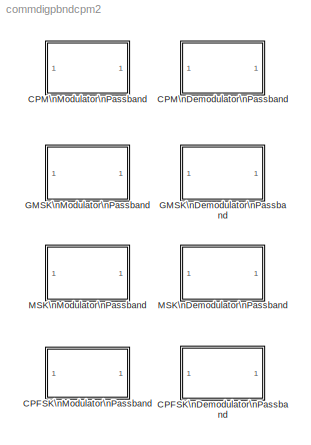
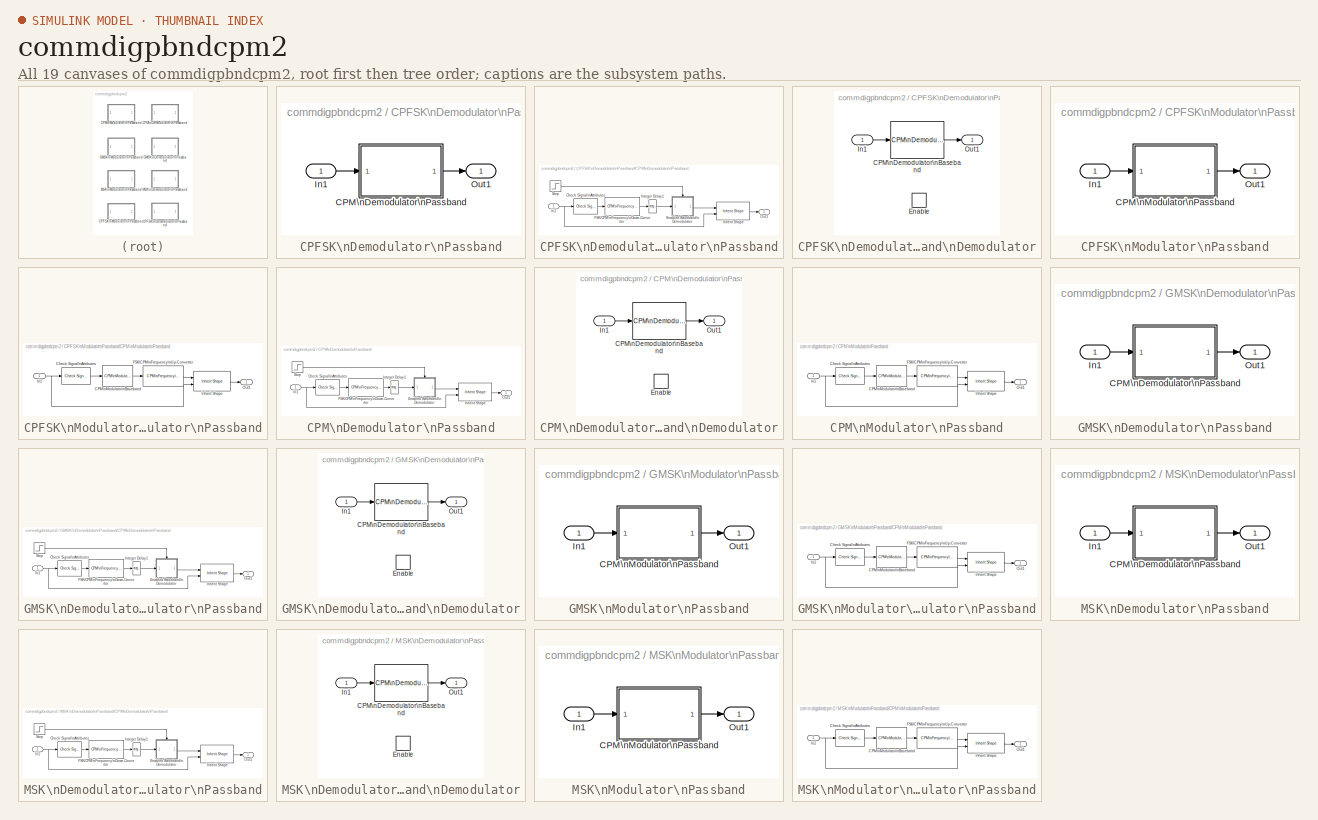
[diagram: thumbnail index - all 19 canvases of the model, root first then tree order]
MODEL commdigpbndcpm2
KIND library
BLOCK [SubSystem] CPFSK\nDemodulator\nPassband
  MaskCallbackString = |commblkpbndcpfskdemod(gcb,'cbOutputType');||||||||
  MaskDescription = Demodulate the CPFSK modulated input signal using the Viterbi algorithm. Traceback length is the number of trellis branches that the algorithm uses to construct each traceback path.\n\nThe input must be sample-based.\n\nThe symbol period divided by the baseband samples per symbol must be an integer multiple of the input sample time.
  MaskDisplay = plot(0,0,100,100,[5+1.5*[[0:.8:10] [10:1.6:20] [20:.8:30]] 50 50 50 50+15*[0 1 1 2 2 3]],[85+10*[sin([0:.8:10]*pi*2/5) sin([10:1.6:20]*pi/5) sin([20:.8:30]*pi*2/5)] 85 99 75 85+8*[1 1 -1 -1 1 1]]);\ntext(50,50,'CPFSK','horiz','center','verti','middle');
  MaskEnableString = on,on,off,on,on,on,on,on,on,on
  MaskHelp = helpview(commbhelp)
  MaskIconFrame = on
  MaskIconOpaque = on
  MaskIconRotate = none
  MaskIconUnits = autoscale
  MaskInitialization = [eStr,params]=commblkpbndcpfskdemod(gcb, 'init');\nif(eStr.ecode==1)\n    error(eStr.emsg);\nelseif(eStr.ecode==2)\n    warning(eStr.emsg);\nend;\n
  MaskPromptString = M-ary number:|Output type:|Symbol set ordering:|Modulation index:|Symbol period (s):|Baseband samples per symbol:|Carrier frequency (Hz):|Carrier initial phase (rad):|Input sample time (s):|Traceback length:
  MaskSelfModifiable = on
  MaskStyleString = edit,popup(Bit|Integer),popup(Binary|Gray),edit,edit,edit,edit,edit,edit,edit
  MaskToolTipString = on,on,on,on,on,on,on,on,on,on
  MaskTunableValueString = off,off,off,off,off,off,off,off,off,off
  MaskType = CPFSK Demodulator Passband
  MaskValueString = 4|Integer|Binary|.5|1/100|8|3000|0|1/8000|16
  MaskVarAliasString = ,,,,,,,,,
  MaskVariables = Mnum=@1;outputType=@2;mappingType=@3;modIdx=@4;td=@5;numSamp=@6;Fc=@7;Ph=@8;InSamp=@9;traceBack=@10;
  MaskVisibilityString = on,on,on,on,on,on,on,on,on,on
  Ports = [1, 1]
  RTWFcnNameOpts = Auto
  RTWFileNameOpts = Auto
  RTWSystemCode = Auto
  ShowPortLabels = on
  TreatAsAtomicUnit = off
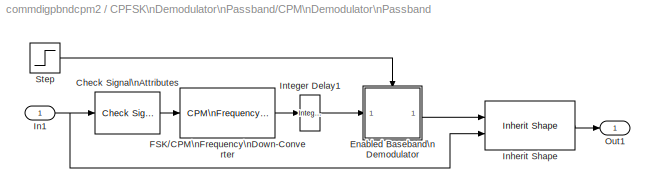
BLOCK [SubSystem] CPFSK\nDemodulator\nPassband/CPM\nDemodulator\nPassband
  AncestorBlock = commdigpbndcpm2/CPM\nDemodulator\nPassband
  ErrorFcn = commblkpbndcpmdemod
  MaskCallbackString = |commblkpbndcpmdemod(gcb,'cbOutputType');|||commblkpbndcpmdemod(gcb,'cbPulseShape');|||||||||||
  MaskDescription = Demodulate the CPM modulated input signal using the Viterbi algorithm. Traceback length is the number of trellis branches that the algorithm uses to construct each traceback path.\n\nThe input must be sample-based.  <repeated x3 — deduplicated; at blocks: CPM\nDemodulator\nPassband>
  MaskDisplay = plot(0,0,100,100,[5+1.5*[[0:.8:10] [10:1.6:20] [20:.8:30]] 50 50 50 50+15*[0 1 1 2 2 3]],[85+10*[sin([0:.8:10]*pi*2/5) sin([10:1.6:20]*pi/5) sin([20:.8:30]*pi*2/5)] 85 99 75 85+8*[1 1 -1 -1 1 1]]);\ntext(50,50,'CPM','horiz','center','verti','middle');  <repeated x4 — deduplicated; at blocks: CPM\nDemodulator\nPassband>
  MaskEnableString = on,on,off,on,on,on,on,on,on,on,on,on,on,on,on,on
  MaskHelp = helpview(commbhelp)
  MaskIconFrame = on
  MaskIconOpaque = on
  MaskIconRotate = none
  MaskIconUnits = autoscale
  MaskInitialization = [eStr,params]=commblkpbndcpmdemod(gcb, 'init');\nif(eStr.ecode==1)\n    error(eStr.emsg);\nelseif(eStr.ecode==2)\n    warning(eStr.emsg);\nend;\n
  MaskPromptString = M-ary number:|Output type:|Symbol set ordering:|Modulation index:|Frequency pulse shape:|BT product:|Main lobe pulse duration (symbol intervals):|Rolloff:|Pulse length (symbol intervals):|Symbol prehistory:|Symbol period (s):|Baseband samples per symbol:|Carrier frequency (Hz):|Carrier initial phase (rad):|Input sample time (s):|Traceback length:  <repeated x4 — deduplicated; at blocks: CPM\nDemodulator\nPassband>
  MaskSelfModifiable = on
  MaskStyleString = edit,popup(Bit|Integer),popup(Binary|Gray),edit,popup(Rectangular|Raised Cosine|Spectral Raised Cosine|Gaussian|Tamed FM),edit,edit,edit,edit,edit,edit,edit,edit,edit,edit,edit
  MaskToolTipString = on,on,on,on,on,on,on,on,on,on,on,on,on,on,on,on
  MaskTunableValueString = off,off,off,off,off,off,off,off,off,off,off,off,off,off,off,off
  MaskType = CPM Demodulator Passband
  MaskValueString = Mnum|Integer|Binary|modIdx|Rectangular|0.3|1|0.2|1|1|td|numSamp|Fc|Ph|InSamp|traceBack
  MaskVarAliasString = ,,,,,,,,,,,,,,,
  MaskVariables = Mnum=@1;outputType=@2;mappingType=@3;modIdx=@4;pulseShape=@5;BT=@6;mainLobePulseLength=@7;rollOff=@8;pulseLength=@9;preHistory=@10;td=@11;numSamp=@12;Fc=@13;Ph=@14;InSamp=@15;traceBack=@16;  <repeated x4 — deduplicated; at blocks: CPM\nDemodulator\nPassband>
  MaskVisibilityString = on,on,on,on,on,off,off,off,on,on,on,on,on,on,on,on
  Ports = [1, 1]
  RTWFcnNameOpts = Auto
  RTWFileNameOpts = Auto
  RTWSystemCode = Auto
  ShowPortLabels = on
  TreatAsAtomicUnit = off
BLOCK [Reference] CPFSK\nDemodulator\nPassband/CPM\nDemodulator\nPassband/Check Signal\nAttributes  REF=dspsigattribs/Check Signal\nAttributes
  Complexity = Ignore
  DatatypeCheckMethod = Ignore
  DatatypeGeneral = Boolean
  Dimensions = 1-D
  DimsCheckMethod = Ignore
  DtypeFixedSpecific = Any fixed-point
  DtypeFloatSpecific = Any floating-point
  DtypeIntSpecific = Any integer
  Frame = Frame-based
  Ports = [1, 1]
  SampleMode = Ignore
  SigAttribCheckMethod = Matches attributes exactly
  SourceBlock = dspsigattribs/Check Signal\nAttributes
  SourceType = Check Signal Attributes
BLOCK [SubSystem] CPFSK\nDemodulator\nPassband/CPM\nDemodulator\nPassband/Enabled Baseband\nDemodulator
  MaskIconFrame = on
  MaskIconOpaque = on
  MaskIconRotate = none
  MaskIconUnits = autoscale
  MaskSelfModifiable = on
  Ports = [1, 1, 1]
  RTWFcnNameOpts = Auto
  RTWFileNameOpts = Auto
  RTWSystemCode = Auto
  ShowPortLabels = on
  TreatAsAtomicUnit = on
BLOCK [Reference] CPFSK\nDemodulator\nPassband/CPM\nDemodulator\nPassband/Enabled Baseband\nDemodulator/CPM\nDemodulator\nBaseband  REF=commdigbbndcpm2/CPM\nDemodulator\nBaseband
  BT = BT
  Mnum = Mnum
  Ports = [1, 1]
  SourceBlock = commdigbbndcpm2/CPM\nDemodulator\nBaseband
  SourceType = CPM Demodulator Baseband
  mainLobePulseLength = 1
  mappingType = Binary
  modIdx = modIdx
  outputType = Integer
  phaseOffset = 0
  preHistory = preHistory
  pulseLength = pulseLength
  pulseShape = Rectangular
  rollOff = rollOff
  samplesPerSymbol = numSamp
  traceBack = traceBack
BLOCK [EnablePort] CPFSK\nDemodulator\nPassband/CPM\nDemodulator\nPassband/Enabled Baseband\nDemodulator/Enable
  Ports = []
  ShowOutputPort = off
  StatesWhenEnabling = held
BLOCK [Inport] CPFSK\nDemodulator\nPassband/CPM\nDemodulator\nPassband/Enabled Baseband\nDemodulator/In1
  Interpolate = on
  LatchInput = off
  Port = 1
BLOCK [Outport] CPFSK\nDemodulator\nPassband/CPM\nDemodulator\nPassband/Enabled Baseband\nDemodulator/Out1
  InitialOutput = []
  OutputWhenDisabled = held
  Port = 1
BLOCK [Reference] CPFSK\nDemodulator\nPassband/CPM\nDemodulator\nPassband/FSK//CPM\nFrequency\nDown-Converter  REF=commblksprivate/FSK//CPM\nFrequency\nDown-Converter
  AncestorBlock = commblksprivate/PAM//QAM//PSK\nFrequency\nDown-Converter
  Fc = Fc
  M = 8
  Ph = Ph
  Ports = [1, 1]
  SourceBlock = commblksprivate/FSK//CPM\nFrequency\nDown-Converter
  SourceType = FSK/CPM Frequency Down-Converter
  Tin = InSamp
  Tout = td / numSamp
  freqSep = 100
  modType = CPM
  td = td
BLOCK [Inport] CPFSK\nDemodulator\nPassband/CPM\nDemodulator\nPassband/In1
  Interpolate = on
  LatchInput = off
  Port = 1
BLOCK [Reference] CPFSK\nDemodulator\nPassband/CPM\nDemodulator\nPassband/Inherit Shape  REF=commblksprivate/Inherit Shape
  Ports = [2, 1]
  SourceBlock = commblksprivate/Inherit Shape
  SourceType = Inherit Shape
BLOCK [Reference] CPFSK\nDemodulator\nPassband/CPM\nDemodulator\nPassband/Integer Delay1  REF=dspsigops/Integer Delay
  Ports = [1, 1]
  SourceBlock = dspsigops/Integer Delay
  SourceType = Integer Delay
  delay = numSamp-1
  ic = 0
BLOCK [Outport] CPFSK\nDemodulator\nPassband/CPM\nDemodulator\nPassband/Out1
  InitialOutput = []
  OutputWhenDisabled = held
  Port = 1
BLOCK [Step] CPFSK\nDemodulator\nPassband/CPM\nDemodulator\nPassband/Step
  After = 1
  Before = 0
  SampleTime = td
  Time = td
  VectorParams1D = on
BLOCK [Inport] CPFSK\nDemodulator\nPassband/In1
  Interpolate = on
  LatchInput = off
  Port = 1
BLOCK [Outport] CPFSK\nDemodulator\nPassband/Out1
  InitialOutput = []
  OutputWhenDisabled = held
  Port = 1
BLOCK [SubSystem] CPFSK\nModulator\nPassband
  ErrorFcn = commblkpbndcpfskmod
  MaskCallbackString = |commblkpbndcpfskmod(gcb,'cbInputType');|||||||
  MaskDescription = Modulate the input signal using continuous phase FSK.\n\nThe input must be sample-based and contain either an integer or log2(M) bits. \n\nThe input sample time must equal the symbol period.  Also, the symbol period divided by the baseband samples per symbol must be an integer multiple of the output sample time.
  MaskDisplay = plot(0,0,100,100,[5+15*[0 1 1 2 2 3] 50 50 50 50+1.5*[[0:.8:10] [10:1.6:20] [20:.8:30]]],[85+8*[1 1 -1 -1 1 1] 85 99 75 85+10*[sin([0:.8:10]*pi*2/5) sin([10:1.6:20]*pi/5) sin([20:.8:30]*pi*2/5)]]);\ntext(50,50,'CPFSK','horiz','center','verti','middle');
  MaskEnableString = on,on,off,on,on,on,on,on,on
  MaskHelp = helpview(commbhelp)
  MaskIconFrame = on
  MaskIconOpaque = on
  MaskIconRotate = none
  MaskIconUnits = autoscale
  MaskInitialization = [eStr,params]=commblkpbndcpfskmod(gcb, 'init');\nif(eStr.ecode==1)\n    error(eStr.emsg);\nelseif(eStr.ecode==2)\n    warning(eStr.emsg);\nend;\n
  MaskPromptString = M-ary number:|Input type:|Symbol set ordering:|Modulation index:|Symbol period (s):|Baseband samples per symbol:|Carrier frequency (Hz):|Carrier initial phase (rad):|Output sample time (s):
  MaskSelfModifiable = on
  MaskStyleString = edit,popup(Bit|Integer),popup(Binary|Gray),edit,edit,edit,edit,edit,edit
  MaskToolTipString = on,on,on,on,on,on,on,on,on
  MaskTunableValueString = on,on,on,on,off,on,off,off,off
  MaskType = CPFSK Modulator Passband
  MaskValueString = 4|Integer|Binary|.5|1/100|8|3000|0|1/8000
  MaskVarAliasString = ,,,,,,,,
  MaskVariables = Mnum=@1;inputType=@2;mappingType=@3;modIdx=@4;td=@5;numSamp=@6;Fc=@7;Ph=@8;OutSamp=@9;
  MaskVisibilityString = on,on,on,on,on,on,on,on,on
  Ports = [1, 1]
  RTWFcnNameOpts = Auto
  RTWFileNameOpts = Auto
  RTWSystemCode = Auto
  ShowPortLabels = on
  TreatAsAtomicUnit = off
BLOCK [SubSystem] CPFSK\nModulator\nPassband/CPM\nModulator\nPassband
  AncestorBlock = commdigpbndcpm2/CPM\nModulator\nPassband
  ErrorFcn = commblkpbndcpmmod
  MaskCallbackString = |commblkpbndcpmmod(gcb,'cbInputType');|||commblkpbndcpmmod(gcb,'cbPulseShape');||||||||||
  MaskDescription = Output the complex envelope representation of the selected continuous phase modulation in response to the input data.\n\nThe input must be sample-based and contain either an integer or log2(M) bits. The input sample time must equal the symbol period.  <repeated x3 — deduplicated; at blocks: CPM\nModulator\nPassband>
  MaskDisplay = plot(0,0,100,100,[5+15*[0 1 1 2 2 3] 50 50 50 50+1.5*[[0:.8:10] [10:1.6:20] [20:.8:30]]],[85+8*[1 1 -1 -1 1 1] 85 99 75 85+10*[sin([0:.8:10]*pi*2/5) sin([10:1.6:20]*pi/5) sin([20:.8:30]*pi*2/5)]]);\ntext(50,50,'CPM','horiz','center','verti','middle');  <repeated x4 — deduplicated; at blocks: CPM\nModulator\nPassband>
  MaskEnableString = on,on,off,on,on,on,on,on,on,on,on,on,on,on,on
  MaskHelp = helpview(commbhelp)
  MaskIconFrame = on
  MaskIconOpaque = on
  MaskIconRotate = none
  MaskIconUnits = autoscale
  MaskInitialization = [eStr,params]=commblkpbndcpmmod(gcb, 'init');\nif(eStr.ecode==1)\n    error(eStr.emsg);\nelseif(eStr.ecode==2)\n    warning(eStr.emsg);\nend;\n\n
  MaskPromptString = M-ary number:|Input type:|Symbol set ordering:|Modulation index:|Frequency pulse shape:|BT product:|Main lobe pulse duration (symbol intervals):|Rolloff:|Pulse length (symbol intervals):|Symbol prehistory:|Symbol period (s):|Baseband samples per symbol:|Carrier frequency (Hz):|Carrier initial phase (rad):|Output sample time:  <repeated x3 — deduplicated; at blocks: CPM\nModulator\nPassband>
  MaskSelfModifiable = on
  MaskStyleString = edit,popup(Bit|Integer),popup(Binary|Gray),edit,popup(Rectangular|Raised Cosine|Spectral Raised Cosine|Gaussian|Tamed FM),edit,edit,edit,edit,edit,edit,edit,edit,edit,edit
  MaskToolTipString = on,on,on,on,on,on,on,on,on,on,on,on,on,on,on
  MaskTunableValueString = off,off,off,off,off,off,off,off,off,off,off,off,off,off,off
  MaskType = CPM Modulator Passband
  MaskValueString = Mnum|Integer|Binary|modIdx|Rectangular|0.3|1|0.2|1|1|td|numSamp|Fc|Ph|OutSamp
  MaskVarAliasString = ,,,,,,,,,,,,,,
  MaskVariables = Mnum=@1;inputType=@2;mappingType=@3;modIdx=@4;pulseShape=@5;BT=@6;mainLobePulseLength=@7;rollOff=@8;pulseLength=@9;preHistory=@10;td=@11;numSamp=@12;Fc=@13;Ph=@14;OutSamp=@15;
  MaskVisibilityString = on,on,on,on,on,off,off,off,on,on,on,on,on,on,on
  Ports = [1, 1]
  RTWFcnNameOpts = Auto
  RTWFileNameOpts = Auto
  RTWSystemCode = Auto
  ShowPortLabels = on
  TreatAsAtomicUnit = off
BLOCK [Reference] CPFSK\nModulator\nPassband/CPM\nModulator\nPassband/CPM\nModulator\nBaseband  REF=commdigbbndcpm2/CPM\nModulator\nBaseband
  BT = BT
  Mnum = Mnum
  Ports = [1, 1]
  SourceBlock = commdigbbndcpm2/CPM\nModulator\nBaseband
  SourceType = CPM Modulator Baseband
  inputType = Integer
  mainLobePulseLength = 1
  mappingType = Binary
  modIdx = modIdx
  phaseOffset = 0
  preHistory = preHistory
  pulseLength = pulseLength
  pulseShape = Rectangular
  rollOff = rollOff
  samplesPerSymbol = numSamp
BLOCK [Reference] CPFSK\nModulator\nPassband/CPM\nModulator\nPassband/Check Signal\nAttributes  REF=dspsigattribs/Check Signal\nAttributes
  Complexity = Ignore
  DatatypeCheckMethod = Ignore
  DatatypeGeneral = Boolean
  Dimensions = 1-D
  DimsCheckMethod = Ignore
  DtypeFixedSpecific = Any fixed-point
  DtypeFloatSpecific = Any floating-point
  DtypeIntSpecific = Any integer
  Frame = Frame-based
  Ports = [1, 1]
  SampleMode = Ignore
  SigAttribCheckMethod = Matches attributes exactly
  SourceBlock = dspsigattribs/Check Signal\nAttributes
  SourceType = Check Signal Attributes
BLOCK [Reference] CPFSK\nModulator\nPassband/CPM\nModulator\nPassband/FSK//CPM\nFrequency\nUp-Converter  REF=commdigpbndfm2/M-FSK\nModulator\nPassband/FSK//CPM\nFrequency\nUp-Converter
  AncestorBlock = commblksprivate/FSK//CPM\nFrequency\nUp-Converter
  Fc = Fc
  M = 8
  Ph = Ph
  Ports = [1, 1]
  SourceBlock = commdigpbndfm2/M-FSK\nModulator\nPassband/FSK//CPM\nFrequency\nUp-Converter
  SourceType = FSK/CPM Frequency Up-Converter
  Tin = td / numSamp
  Tout = OutSamp
  freqSep = 6
  modType = CPM
  td = td
BLOCK [Inport] CPFSK\nModulator\nPassband/CPM\nModulator\nPassband/In1
  Interpolate = on
  LatchInput = off
  Port = 1
BLOCK [Reference] CPFSK\nModulator\nPassband/CPM\nModulator\nPassband/Inherit Shape  REF=commblksprivate/Inherit Shape
  Ports = [2, 1]
  SourceBlock = commblksprivate/Inherit Shape
  SourceType = Inherit Shape
BLOCK [Outport] CPFSK\nModulator\nPassband/CPM\nModulator\nPassband/Out1
  InitialOutput = []
  OutputWhenDisabled = held
  Port = 1
BLOCK [Inport] CPFSK\nModulator\nPassband/In1
  Interpolate = on
  LatchInput = off
  Port = 1
BLOCK [Outport] CPFSK\nModulator\nPassband/Out1
  InitialOutput = []
  OutputWhenDisabled = held
  Port = 1
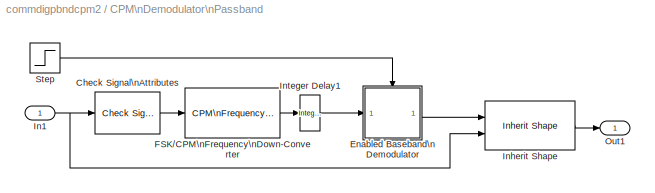
BLOCK [SubSystem] CPM\nDemodulator\nPassband
  ErrorFcn = commblkpbndcpmdemod
  MaskCallbackString = |commblkpbndcpmdemod(gcb,'cbOutputType');|||commblkpbndcpmdemod(gcb,'cbPulseShape');|||||||||||
  MaskDescription = Demodulate the CPM modulated input signal using the Viterbi algorithm. Traceback length is the number of trellis branches that the algorithm uses to construct each traceback path.\n\nThe input must be sample-based.\n\nThe symbol period divided by the baseband samples per symbol must be an integer multiple of the input sample time.
  MaskEnableString = on,on,off,on,on,on,on,on,on,on,on,on,on,on,on,on
  MaskHelp = helpview(commbhelp)
  MaskIconFrame = on
  MaskIconOpaque = on
  MaskIconRotate = none
  MaskIconUnits = autoscale
  MaskInitialization = [eStr,params]=commblkpbndcpmdemod(gcb, 'init');\nif(eStr.ecode==1)\n    error(eStr.emsg);\nelseif(eStr.ecode==2)\n    warning(eStr.emsg);\nend;\n
  MaskSelfModifiable = on
  MaskStyleString = edit,popup(Bit|Integer),popup(Binary|Gray),edit,popup(Rectangular|Raised Cosine|Spectral Raised Cosine|Gaussian|Tamed FM),edit,edit,edit,edit,edit,edit,edit,edit,edit,edit,edit
  MaskToolTipString = on,on,on,on,on,on,on,on,on,on,on,on,on,on,on,on
  MaskTunableValueString = off,off,off,off,off,off,off,off,off,off,off,off,off,off,off,off
  MaskType = CPM Demodulator Passband
  MaskValueString = 2|Integer|Binary|0.5|Rectangular|0.3|1|0.2|1|1|1/100|8|3000|0|1/8000|16
  MaskVarAliasString = ,,,,,,,,,,,,,,,
  MaskVisibilityString = on,on,on,on,on,off,off,off,on,on,on,on,on,on,on,on
  Ports = [1, 1]
  RTWFcnNameOpts = Auto
  RTWFileNameOpts = Auto
  RTWSystemCode = Auto
  ShowPortLabels = on
  TreatAsAtomicUnit = off
BLOCK [Reference] CPM\nDemodulator\nPassband/Check Signal\nAttributes  REF=dspsigattribs/Check Signal\nAttributes
  Complexity = Ignore
  DatatypeCheckMethod = Ignore
  DatatypeGeneral = Boolean
  Dimensions = 1-D
  DimsCheckMethod = Ignore
  DtypeFixedSpecific = Any fixed-point
  DtypeFloatSpecific = Any floating-point
  DtypeIntSpecific = Any integer
  Frame = Frame-based
  Ports = [1, 1]
  SampleMode = Ignore
  SigAttribCheckMethod = Matches attributes exactly
  SourceBlock = dspsigattribs/Check Signal\nAttributes
  SourceType = Check Signal Attributes
BLOCK [SubSystem] CPM\nDemodulator\nPassband/Enabled Baseband\nDemodulator
  MaskIconFrame = on
  MaskIconOpaque = on
  MaskIconRotate = none
  MaskIconUnits = autoscale
  MaskSelfModifiable = on
  Ports = [1, 1, 1]
  RTWFcnNameOpts = Auto
  RTWFileNameOpts = Auto
  RTWSystemCode = Auto
  ShowPortLabels = on
  TreatAsAtomicUnit = on
BLOCK [Reference] CPM\nDemodulator\nPassband/Enabled Baseband\nDemodulator/CPM\nDemodulator\nBaseband  REF=commdigbbndcpm2/CPM\nDemodulator\nBaseband
  BT = BT
  Mnum = Mnum
  Ports = [1, 1]
  SourceBlock = commdigbbndcpm2/CPM\nDemodulator\nBaseband
  SourceType = CPM Demodulator Baseband
  mainLobePulseLength = 1
  mappingType = Binary
  modIdx = modIdx
  outputType = Integer
  phaseOffset = 0
  preHistory = preHistory
  pulseLength = pulseLength
  pulseShape = Rectangular
  rollOff = rollOff
  samplesPerSymbol = numSamp
  traceBack = traceBack
BLOCK [EnablePort] CPM\nDemodulator\nPassband/Enabled Baseband\nDemodulator/Enable
  Ports = []
  ShowOutputPort = off
  StatesWhenEnabling = held
BLOCK [Inport] CPM\nDemodulator\nPassband/Enabled Baseband\nDemodulator/In1
  Interpolate = on
  LatchInput = off
  Port = 1
BLOCK [Outport] CPM\nDemodulator\nPassband/Enabled Baseband\nDemodulator/Out1
  InitialOutput = []
  OutputWhenDisabled = held
  Port = 1
BLOCK [Reference] CPM\nDemodulator\nPassband/FSK//CPM\nFrequency\nDown-Converter  REF=commblksprivate/FSK//CPM\nFrequency\nDown-Converter
  Fc = Fc
  M = 8
  Ph = Ph
  Ports = [1, 1]
  SourceBlock = commblksprivate/FSK//CPM\nFrequency\nDown-Converter
  SourceType = FSK/CPM Frequency Down-Converter
  Tin = InSamp
  Tout = td / numSamp
  freqSep = 100
  modType = CPM
  td = td
BLOCK [Inport] CPM\nDemodulator\nPassband/In1
  Interpolate = on
  LatchInput = off
  Port = 1
BLOCK [Reference] CPM\nDemodulator\nPassband/Inherit Shape  REF=commblksprivate/Inherit Shape
  Ports = [2, 1]
  SourceBlock = commblksprivate/Inherit Shape
  SourceType = Inherit Shape
BLOCK [Reference] CPM\nDemodulator\nPassband/Integer Delay1  REF=dspsigops/Integer Delay
  Ports = [1, 1]
  SourceBlock = dspsigops/Integer Delay
  SourceType = Integer Delay
  delay = numSamp-1
  ic = 0
BLOCK [Outport] CPM\nDemodulator\nPassband/Out1
  InitialOutput = []
  OutputWhenDisabled = held
  Port = 1
BLOCK [Step] CPM\nDemodulator\nPassband/Step
  After = 1
  Before = 0
  SampleTime = td
  Time = td
  VectorParams1D = on
BLOCK [SubSystem] CPM\nModulator\nPassband
  ErrorFcn = commblkpbndcpmmod
  MaskCallbackString = |commblkpbndcpmmod(gcb,'cbInputType');|||commblkpbndcpmmod(gcb,'cbPulseShape');||||||||||
  MaskDescription = Output the complex envelope representation of the selected continuous phase modulation in response to the input data.\n\nThe input must be sample-based and contain either an integer or log2(M) bits. \n\nThe input sample time must equal the symbol period.  Also, the symbol period divided by the baseband samples per symbol must be an integer multiple of the output sample time.
  MaskEnableString = on,on,off,on,on,on,on,on,on,on,on,on,on,on,on
  MaskHelp = helpview(commbhelp)
  MaskIconFrame = on
  MaskIconOpaque = on
  MaskIconRotate = none
  MaskIconUnits = autoscale
  MaskInitialization = [eStr,params]=commblkpbndcpmmod(gcb, 'init');\nif(eStr.ecode==1)\n    error(eStr.emsg);\nelseif(eStr.ecode==2)\n    warning(eStr.emsg);\nend;\n\n
  MaskPromptString = M-ary number:|Input type:|Symbol set ordering:|Modulation index:|Frequency pulse shape:|BT product:|Main lobe pulse duration (symbol intervals):|Rolloff:|Pulse length (symbol intervals):|Symbol prehistory:|Symbol period (s):|Baseband samples per symbol:|Carrier frequency (Hz):|Carrier initial phase (rad):|Output sample time (s):
  MaskSelfModifiable = on
  MaskStyleString = edit,popup(Bit|Integer),popup(Binary|Gray),edit,popup(Rectangular|Raised Cosine|Spectral Raised Cosine|Gaussian|Tamed FM),edit,edit,edit,edit,edit,edit,edit,edit,edit,edit
  MaskToolTipString = on,on,on,on,on,on,on,on,on,on,on,on,on,on,on
  MaskTunableValueString = off,off,off,off,off,off,off,off,off,off,off,off,off,off,off
  MaskType = CPM Modulator Passband
  MaskValueString = 2|Integer|Binary|0.5|Rectangular|0.3|1|0.2|1|1|1/100|8|3000|0|1/8000
  MaskVarAliasString = ,,,,,,,,,,,,,,
  MaskVariables = Mnum=@1;inputType=@2;mappingType=@3;modIdx=@4;pulseShape=@5;BT=@6;mainLobePulseLength=@7;rollOff=@8;pulseLength=@9;preHistory=@10;td=@11;numSamp=@12;Fc=@13;Ph=@14;OutSamp=@15;
  MaskVisibilityString = on,on,on,on,on,off,off,off,on,on,on,on,on,on,on
  Ports = [1, 1]
  RTWFcnNameOpts = Auto
  RTWFileNameOpts = Auto
  RTWSystemCode = Auto
  ShowPortLabels = on
  TreatAsAtomicUnit = off
BLOCK [Reference] CPM\nModulator\nPassband/CPM\nModulator\nBaseband  REF=commdigbbndcpm2/CPM\nModulator\nBaseband
  BT = BT
  Mnum = Mnum
  Ports = [1, 1]
  SourceBlock = commdigbbndcpm2/CPM\nModulator\nBaseband
  SourceType = CPM Modulator Baseband
  inputType = Integer
  mainLobePulseLength = 1
  mappingType = Binary
  modIdx = modIdx
  phaseOffset = 0
  preHistory = preHistory
  pulseLength = pulseLength
  pulseShape = Rectangular
  rollOff = rollOff
  samplesPerSymbol = numSamp
BLOCK [Reference] CPM\nModulator\nPassband/Check Signal\nAttributes  REF=dspsigattribs/Check Signal\nAttributes
  Complexity = Ignore
  DatatypeCheckMethod = Ignore
  DatatypeGeneral = Boolean
  Dimensions = 1-D
  DimsCheckMethod = Ignore
  DtypeFixedSpecific = Any fixed-point
  DtypeFloatSpecific = Any floating-point
  DtypeIntSpecific = Any integer
  Frame = Frame-based
  Ports = [1, 1]
  SampleMode = Ignore
  SigAttribCheckMethod = Matches attributes exactly
  SourceBlock = dspsigattribs/Check Signal\nAttributes
  SourceType = Check Signal Attributes
BLOCK [Reference] CPM\nModulator\nPassband/FSK//CPM\nFrequency\nUp-Converter  REF=commblksprivate/FSK//CPM\nFrequency\nUp-Converter
  Fc = Fc
  M = 8
  Ph = Ph
  Ports = [1, 1]
  SourceBlock = commblksprivate/FSK//CPM\nFrequency\nUp-Converter
  SourceType = FSK/CPM Frequency Up-Converter
  Tin = td / numSamp
  Tout = OutSamp
  freqSep = 6
  modType = CPM
  td = td
BLOCK [Inport] CPM\nModulator\nPassband/In1
  Interpolate = on
  LatchInput = off
  Port = 1
BLOCK [Reference] CPM\nModulator\nPassband/Inherit Shape  REF=commblksprivate/Inherit Shape
  Ports = [2, 1]
  SourceBlock = commblksprivate/Inherit Shape
  SourceType = Inherit Shape
BLOCK [Outport] CPM\nModulator\nPassband/Out1
  InitialOutput = []
  OutputWhenDisabled = held
  Port = 1
BLOCK [SubSystem] GMSK\nDemodulator\nPassband
  MaskCallbackString = |||||||||
  MaskDescription = Demodulate the GMSK modulated input signal using the Viterbi algorithm. Traceback length is the number of trellis branches that the algorithm uses to construct each traceback path.\n\nThe input must be sample-based.\n\nThe symbol period divided by the baseband samples per symbol must be an integer multiple of the input sample time.
  MaskDisplay = plot(0,0,100,100,[5+1.5*[[0:.8:10] [10:1.6:20] [20:.8:30]] 50 50 50 50+15*[0 1 1 2 2 3]],[85+10*[sin([0:.8:10]*pi*2/5) sin([10:1.6:20]*pi/5) sin([20:.8:30]*pi*2/5)] 85 99 75 85+8*[1 1 -1 -1 1 1]]);\ntext(50,50,'GMSK','horiz','center','verti','middle');
  MaskEnableString = on,on,on,on,on,on,on,on,on,on
  MaskHelp = helpview(commbhelp)
  MaskIconFrame = on
  MaskIconOpaque = on
  MaskIconRotate = none
  MaskIconUnits = autoscale
  MaskInitialization = [eStr,params]=commblkpbndgmskdemod(gcb, 'init');\nif(eStr.ecode==1)\n    error(eStr.emsg);\nelseif(eStr.ecode==2)\n    warning(eStr.emsg);\nend;\n
  MaskPromptString = Output type:|BT product:|Pulse length (symbol intervals):|Symbol prehistory:|Symbol period (s):|Baseband samples per symbol:|Carrier frequency (Hz):|Carrier initial phase (rad):|Input sample time (s):|Traceback length:
  MaskSelfModifiable = on
  MaskStyleString = popup(Bit|Integer),edit,edit,edit,edit,edit,edit,edit,edit,edit
  MaskToolTipString = on,on,on,on,on,on,on,on,on,on
  MaskTunableValueString = off,off,off,off,off,off,off,off,off,off
  MaskType = GMSK Demodulator Passband
  MaskValueString = Integer|.3|4|1|1/100|8|3000|0|1/8000|16
  MaskVarAliasString = ,,,,,,,,,
  MaskVariables = outputType=@1;BT=@2;pulseLength=@3;preHistory=@4;td=@5;numSamp=@6;Fc=@7;Ph=@8;InSamp=@9;traceBack=@10;
  MaskVisibilityString = on,on,on,on,on,on,on,on,on,on
  Ports = [1, 1]
  RTWFcnNameOpts = Auto
  RTWFileNameOpts = Auto
  RTWSystemCode = Auto
  ShowPortLabels = on
  TreatAsAtomicUnit = off
BLOCK [SubSystem] GMSK\nDemodulator\nPassband/CPM\nDemodulator\nPassband
  AncestorBlock = commdigpbndcpm2/CPM\nDemodulator\nPassband
  ErrorFcn = commblkpbndcpmdemod
  MaskCallbackString = |commblkpbndcpmdemod(gcb,'cbOutputType');|||commblkpbndcpmdemod(gcb,'cbPulseShape');|||||||||||
  MaskEnableString = on,on,off,on,on,on,on,on,on,on,on,on,on,on,on,on
  MaskHelp = helpview(commbhelp)
  MaskIconFrame = on
  MaskIconOpaque = on
  MaskIconRotate = none
  MaskIconUnits = autoscale
  MaskInitialization = [eStr,params]=commblkpbndcpmdemod(gcb, 'init');\nif(eStr.ecode==1)\n    error(eStr.emsg);\nelseif(eStr.ecode==2)\n    warning(eStr.emsg);\nend;\n
  MaskSelfModifiable = on
  MaskStyleString = edit,popup(Bit|Integer),popup(Binary|Gray),edit,popup(Rectangular|Raised Cosine|Spectral Raised Cosine|Gaussian|Tamed FM),edit,edit,edit,edit,edit,edit,edit,edit,edit,edit,edit
  MaskToolTipString = on,on,on,on,on,on,on,on,on,on,on,on,on,on,on,on
  MaskTunableValueString = off,off,off,off,off,off,off,off,off,off,off,off,off,off,off,off
  MaskType = CPM Demodulator Passband
  MaskValueString = 2|Integer|Binary|0.5|Gaussian|BT|1|0.2|pulseLength|preHistory|td|numSamp|Fc|Ph|InSamp|traceBack
  MaskVarAliasString = ,,,,,,,,,,,,,,,
  MaskVisibilityString = on,on,on,on,on,off,off,off,on,on,on,on,on,on,on,on
  Ports = [1, 1]
  RTWFcnNameOpts = Auto
  RTWFileNameOpts = Auto
  RTWSystemCode = Auto
  ShowPortLabels = on
  TreatAsAtomicUnit = off
BLOCK [Reference] GMSK\nDemodulator\nPassband/CPM\nDemodulator\nPassband/Check Signal\nAttributes  REF=dspsigattribs/Check Signal\nAttributes
  Complexity = Ignore
  DatatypeCheckMethod = Ignore
  DatatypeGeneral = Boolean
  Dimensions = 1-D
  DimsCheckMethod = Ignore
  DtypeFixedSpecific = Any fixed-point
  DtypeFloatSpecific = Any floating-point
  DtypeIntSpecific = Any integer
  Frame = Frame-based
  Ports = [1, 1]
  SampleMode = Ignore
  SigAttribCheckMethod = Matches attributes exactly
  SourceBlock = dspsigattribs/Check Signal\nAttributes
  SourceType = Check Signal Attributes
BLOCK [SubSystem] GMSK\nDemodulator\nPassband/CPM\nDemodulator\nPassband/Enabled Baseband\nDemodulator
  MaskIconFrame = on
  MaskIconOpaque = on
  MaskIconRotate = none
  MaskIconUnits = autoscale
  MaskSelfModifiable = on
  Ports = [1, 1, 1]
  RTWFcnNameOpts = Auto
  RTWFileNameOpts = Auto
  RTWSystemCode = Auto
  ShowPortLabels = on
  TreatAsAtomicUnit = on
BLOCK [Reference] GMSK\nDemodulator\nPassband/CPM\nDemodulator\nPassband/Enabled Baseband\nDemodulator/CPM\nDemodulator\nBaseband  REF=commdigbbndcpm2/CPM\nDemodulator\nBaseband
  BT = BT
  Mnum = Mnum
  Ports = [1, 1]
  SourceBlock = commdigbbndcpm2/CPM\nDemodulator\nBaseband
  SourceType = CPM Demodulator Baseband
  mainLobePulseLength = 1
  mappingType = Binary
  modIdx = modIdx
  outputType = Integer
  phaseOffset = 0
  preHistory = preHistory
  pulseLength = pulseLength
  pulseShape = Gaussian
  rollOff = rollOff
  samplesPerSymbol = numSamp
  traceBack = traceBack
BLOCK [EnablePort] GMSK\nDemodulator\nPassband/CPM\nDemodulator\nPassband/Enabled Baseband\nDemodulator/Enable
  Ports = []
  ShowOutputPort = off
  StatesWhenEnabling = held
BLOCK [Inport] GMSK\nDemodulator\nPassband/CPM\nDemodulator\nPassband/Enabled Baseband\nDemodulator/In1
  Interpolate = on
  LatchInput = off
  Port = 1
BLOCK [Outport] GMSK\nDemodulator\nPassband/CPM\nDemodulator\nPassband/Enabled Baseband\nDemodulator/Out1
  InitialOutput = []
  OutputWhenDisabled = held
  Port = 1
BLOCK [Reference] GMSK\nDemodulator\nPassband/CPM\nDemodulator\nPassband/FSK//CPM\nFrequency\nDown-Converter  REF=commblksprivate/FSK//CPM\nFrequency\nDown-Converter
  AncestorBlock = commblksprivate/PAM//QAM//PSK\nFrequency\nDown-Converter
  Fc = Fc
  M = 8
  Ph = Ph
  Ports = [1, 1]
  SourceBlock = commblksprivate/FSK//CPM\nFrequency\nDown-Converter
  SourceType = FSK/CPM Frequency Down-Converter
  Tin = InSamp
  Tout = td / numSamp
  freqSep = 100
  modType = CPM
  td = td
BLOCK [Inport] GMSK\nDemodulator\nPassband/CPM\nDemodulator\nPassband/In1
  Interpolate = on
  LatchInput = off
  Port = 1
BLOCK [Reference] GMSK\nDemodulator\nPassband/CPM\nDemodulator\nPassband/Inherit Shape  REF=commblksprivate/Inherit Shape
  Ports = [2, 1]
  SourceBlock = commblksprivate/Inherit Shape
  SourceType = Inherit Shape
BLOCK [Reference] GMSK\nDemodulator\nPassband/CPM\nDemodulator\nPassband/Integer Delay1  REF=dspsigops/Integer Delay
  Ports = [1, 1]
  SourceBlock = dspsigops/Integer Delay
  SourceType = Integer Delay
  delay = numSamp-1
  ic = 0
BLOCK [Outport] GMSK\nDemodulator\nPassband/CPM\nDemodulator\nPassband/Out1
  InitialOutput = []
  OutputWhenDisabled = held
  Port = 1
BLOCK [Step] GMSK\nDemodulator\nPassband/CPM\nDemodulator\nPassband/Step
  After = 1
  Before = 0
  SampleTime = td
  Time = td
  VectorParams1D = on
BLOCK [Inport] GMSK\nDemodulator\nPassband/In1
  Interpolate = on
  LatchInput = off
  Port = 1
BLOCK [Outport] GMSK\nDemodulator\nPassband/Out1
  InitialOutput = []
  OutputWhenDisabled = held
  Port = 1
BLOCK [SubSystem] GMSK\nModulator\nPassband
  ErrorFcn = commblkpbndgmskmod
  MaskCallbackString = ||||||||
  MaskDescription = Modulate the input signal using GMSK.\n\nThe input must be sample-based and contain either an integer or log2(M) bits. \n\nThe input sample time must equal the symbol period.  Also, the symbol period divided by the baseband samples per symbol must be an integer multiple of the output sample time.
  MaskDisplay = plot(0,0,100,100,[5+15*[0 1 1 2 2 3] 50 50 50 50+1.5*[[0:.8:10] [10:1.6:20] [20:.8:30]]],[85+8*[1 1 -1 -1 1 1] 85 99 75 85+10*[sin([0:.8:10]*pi*2/5) sin([10:1.6:20]*pi/5) sin([20:.8:30]*pi*2/5)]]);\ntext(50,50,'GMSK','horiz','center','verti','middle');
  MaskEnableString = on,on,on,on,on,on,on,on,on
  MaskHelp = helpview(commbhelp)
  MaskIconFrame = on
  MaskIconOpaque = on
  MaskIconRotate = none
  MaskIconUnits = autoscale
  MaskInitialization = [eStr,params]=commblkpbndgmskmod(gcb, 'init');\nif(eStr.ecode==1)\n    error(eStr.emsg);\nelseif(eStr.ecode==2)\n    warning(eStr.emsg);\nend;\n
  MaskPromptString = Input type:|BT product:|Pulse length (symbol intervals):|Symbol prehistory:|Symbol period (s):|Baseband samples per symbol:|Carrier frequency (Hz):|Carrier initial phase (rad):|Output sample time (s):
  MaskSelfModifiable = on
  MaskStyleString = popup(Bit|Integer),edit,edit,edit,edit,edit,edit,edit,edit
  MaskToolTipString = on,on,on,on,on,on,on,on,on
  MaskTunableValueString = on,on,on,on,off,on,off,off,off
  MaskType = GMSK Modulator Passband
  MaskValueString = Integer|.3|4|1|1/100|8|3000|0|1/8000
  MaskVarAliasString = ,,,,,,,,
  MaskVariables = inputType=@1;BT=@2;pulseLength=@3;preHistory=@4;td=@5;numSamp=@6;Fc=@7;Ph=@8;OutSamp=@9;
  MaskVisibilityString = on,on,on,on,on,on,on,on,on
  Ports = [1, 1]
  RTWFcnNameOpts = Auto
  RTWFileNameOpts = Auto
  RTWSystemCode = Auto
  ShowPortLabels = on
  TreatAsAtomicUnit = off
BLOCK [SubSystem] GMSK\nModulator\nPassband/CPM\nModulator\nPassband
  AncestorBlock = commdigpbndcpm2/CPM\nModulator\nPassband
  ErrorFcn = commblkpbndcpmmod
  MaskCallbackString = |commblkpbndcpmmod(gcb,'cbInputType');|||commblkpbndcpmmod(gcb,'cbPulseShape');||||||||||
  MaskEnableString = on,on,off,on,on,on,on,on,on,on,on,on,on,on,on
  MaskHelp = helpview(commbhelp)
  MaskIconFrame = on
  MaskIconOpaque = on
  MaskIconRotate = none
  MaskIconUnits = autoscale
  MaskInitialization = [eStr,params]=commblkpbndcpmmod(gcb, 'init');\nif(eStr.ecode==1)\n    error(eStr.emsg);\nelseif(eStr.ecode==2)\n    warning(eStr.emsg);\nend;\n\n
  MaskSelfModifiable = on
  MaskStyleString = edit,popup(Bit|Integer),popup(Binary|Gray),edit,popup(Rectangular|Raised Cosine|Spectral Raised Cosine|Gaussian|Tamed FM),edit,edit,edit,edit,edit,edit,edit,edit,edit,edit
  MaskToolTipString = on,on,on,on,on,on,on,on,on,on,on,on,on,on,on
  MaskTunableValueString = off,off,off,off,off,off,off,off,off,off,off,off,off,off,off
  MaskType = CPM Modulator Passband
  MaskValueString = 2|Integer|Binary|.5|Gaussian|BT|1|0.2|pulseLength|preHistory|td|numSamp|Fc|Ph|OutSamp
  MaskVarAliasString = ,,,,,,,,,,,,,,
  MaskVariables = Mnum=@1;inputType=@2;mappingType=@3;modIdx=@4;pulseShape=@5;BT=@6;mainLobePulseLength=@7;rollOff=@8;pulseLength=@9;preHistory=@10;td=@11;numSamp=@12;Fc=@13;Ph=@14;OutSamp=@15;
  MaskVisibilityString = on,on,on,on,on,on,off,off,on,on,on,on,on,on,on
  Ports = [1, 1]
  RTWFcnNameOpts = Auto
  RTWFileNameOpts = Auto
  RTWSystemCode = Auto
  ShowPortLabels = on
  TreatAsAtomicUnit = off
BLOCK [Reference] GMSK\nModulator\nPassband/CPM\nModulator\nPassband/CPM\nModulator\nBaseband  REF=commdigbbndcpm2/CPM\nModulator\nBaseband
  BT = BT
  Mnum = Mnum
  Ports = [1, 1]
  SourceBlock = commdigbbndcpm2/CPM\nModulator\nBaseband
  SourceType = CPM Modulator Baseband
  inputType = Integer
  mainLobePulseLength = 1
  mappingType = Binary
  modIdx = modIdx
  phaseOffset = 0
  preHistory = preHistory
  pulseLength = pulseLength
  pulseShape = Gaussian
  rollOff = rollOff
  samplesPerSymbol = numSamp
BLOCK [Reference] GMSK\nModulator\nPassband/CPM\nModulator\nPassband/Check Signal\nAttributes  REF=dspsigattribs/Check Signal\nAttributes
  Complexity = Ignore
  DatatypeCheckMethod = Ignore
  DatatypeGeneral = Boolean
  Dimensions = 1-D
  DimsCheckMethod = Ignore
  DtypeFixedSpecific = Any fixed-point
  DtypeFloatSpecific = Any floating-point
  DtypeIntSpecific = Any integer
  Frame = Frame-based
  Ports = [1, 1]
  SampleMode = Ignore
  SigAttribCheckMethod = Matches attributes exactly
  SourceBlock = dspsigattribs/Check Signal\nAttributes
  SourceType = Check Signal Attributes
BLOCK [Reference] GMSK\nModulator\nPassband/CPM\nModulator\nPassband/FSK//CPM\nFrequency\nUp-Converter  REF=commdigpbndfm2/M-FSK\nModulator\nPassband/FSK//CPM\nFrequency\nUp-Converter
  AncestorBlock = commblksprivate/FSK//CPM\nFrequency\nUp-Converter
  Fc = Fc
  M = 8
  Ph = Ph
  Ports = [1, 1]
  SourceBlock = commdigpbndfm2/M-FSK\nModulator\nPassband/FSK//CPM\nFrequency\nUp-Converter
  SourceType = FSK/CPM Frequency Up-Converter
  Tin = td / numSamp
  Tout = OutSamp
  freqSep = 6
  modType = CPM
  td = td
BLOCK [Inport] GMSK\nModulator\nPassband/CPM\nModulator\nPassband/In1
  Interpolate = on
  LatchInput = off
  Port = 1
BLOCK [Reference] GMSK\nModulator\nPassband/CPM\nModulator\nPassband/Inherit Shape  REF=commblksprivate/Inherit Shape
  Ports = [2, 1]
  SourceBlock = commblksprivate/Inherit Shape
  SourceType = Inherit Shape
BLOCK [Outport] GMSK\nModulator\nPassband/CPM\nModulator\nPassband/Out1
  InitialOutput = []
  OutputWhenDisabled = held
  Port = 1
BLOCK [Inport] GMSK\nModulator\nPassband/In1
  Interpolate = on
  LatchInput = off
  Port = 1
BLOCK [Outport] GMSK\nModulator\nPassband/Out1
  InitialOutput = []
  OutputWhenDisabled = held
  Port = 1
BLOCK [SubSystem] MSK\nDemodulator\nPassband
  MaskCallbackString = ||||||
  MaskDescription = Demodulate the MSK modulated input signal using the Viterbi algorithm. Traceback length is the number of trellis branches that the algorithm uses to construct each traceback path.\n\nThe input must be sample-based.\n\nThe symbol period divided by the baseband samples per symbol must be an integer multiple of the input sample time.
  MaskDisplay = plot(0,0,100,100,[5+1.5*[[0:.8:10] [10:1.6:20] [20:.8:30]] 50 50 50 50+15*[0 1 1 2 2 3]],[85+10*[sin([0:.8:10]*pi*2/5) sin([10:1.6:20]*pi/5) sin([20:.8:30]*pi*2/5)] 85 99 75 85+8*[1 1 -1 -1 1 1]]);\ntext(51,51,'MSK','horiz','center','verti','middle');\n
  MaskEnableString = on,on,on,on,on,on,on
  MaskHelp = helpview(commbhelp)
  MaskIconFrame = on
  MaskIconOpaque = on
  MaskIconRotate = none
  MaskIconUnits = autoscale
  MaskInitialization = [eStr,params]=commblkpbndmskdemod(gcb, 'init');\nif(eStr.ecode==1)\n    error(eStr.emsg);\nelseif(eStr.ecode==2)\n    warning(eStr.emsg);\nend;\n
  MaskPromptString = Output type:|Symbol period (s):|Baseband samples per symbol:|Carrier frequency (Hz):|Carrier initial phase (rad):|Input sample time (s):|Traceback length:
  MaskSelfModifiable = on
  MaskStyleString = popup(Bit|Integer),edit,edit,edit,edit,edit,edit
  MaskToolTipString = on,on,on,on,on,on,on
  MaskTunableValueString = off,off,off,off,off,off,off
  MaskType = MSK Demodulator Passband
  MaskValueString = Integer|1/100|8|3000|0|1/8000|16
  MaskVarAliasString = ,,,,,,
  MaskVariables = outputType=@1;td=@2;numSamp=@3;Fc=@4;Ph=@5;InSamp=@6;traceBack=@7;
  MaskVisibilityString = on,on,on,on,on,on,on
  Ports = [1, 1]
  RTWFcnNameOpts = Auto
  RTWFileNameOpts = Auto
  RTWSystemCode = Auto
  ShowPortLabels = on
  TreatAsAtomicUnit = off
BLOCK [SubSystem] MSK\nDemodulator\nPassband/CPM\nDemodulator\nPassband
  AncestorBlock = commdigpbndcpm2/CPM\nDemodulator\nPassband
  ErrorFcn = commblkpbndcpmdemod
  MaskCallbackString = |commblkpbndcpmdemod(gcb,'cbOutputType');|||commblkpbndcpmdemod(gcb,'cbPulseShape');|||||||||||
  MaskEnableString = on,on,off,on,on,on,on,on,on,on,on,on,on,on,on,on
  MaskHelp = helpview(commbhelp)
  MaskIconFrame = on
  MaskIconOpaque = on
  MaskIconRotate = none
  MaskIconUnits = autoscale
  MaskInitialization = [eStr,params]=commblkpbndcpmdemod(gcb, 'init');\nif(eStr.ecode==1)\n    error(eStr.emsg);\nelseif(eStr.ecode==2)\n    warning(eStr.emsg);\nend;\n
  MaskSelfModifiable = on
  MaskStyleString = edit,popup(Bit|Integer),popup(Binary|Gray),edit,popup(Rectangular|Raised Cosine|Spectral Raised Cosine|Gaussian|Tamed FM),edit,edit,edit,edit,edit,edit,edit,edit,edit,edit,edit
  MaskToolTipString = on,on,on,on,on,on,on,on,on,on,on,on,on,on,on,on
  MaskTunableValueString = off,off,off,off,off,off,off,off,off,off,off,off,off,off,off,off
  MaskType = CPM Demodulator Passband
  MaskValueString = 2|Integer|Binary|0.5|Rectangular|0.3|1|0.2|1|1|td|numSamp|Fc|Ph|InSamp|traceBack
  MaskVarAliasString = ,,,,,,,,,,,,,,,
  MaskVisibilityString = on,on,on,on,on,off,off,off,on,on,on,on,on,on,on,on
  Ports = [1, 1]
  RTWFcnNameOpts = Auto
  RTWFileNameOpts = Auto
  RTWSystemCode = Auto
  ShowPortLabels = on
  TreatAsAtomicUnit = off
BLOCK [Reference] MSK\nDemodulator\nPassband/CPM\nDemodulator\nPassband/Check Signal\nAttributes  REF=dspsigattribs/Check Signal\nAttributes
  Complexity = Ignore
  DatatypeCheckMethod = Ignore
  DatatypeGeneral = Boolean
  Dimensions = 1-D
  DimsCheckMethod = Ignore
  DtypeFixedSpecific = Any fixed-point
  DtypeFloatSpecific = Any floating-point
  DtypeIntSpecific = Any integer
  Frame = Frame-based
  Ports = [1, 1]
  SampleMode = Ignore
  SigAttribCheckMethod = Matches attributes exactly
  SourceBlock = dspsigattribs/Check Signal\nAttributes
  SourceType = Check Signal Attributes
BLOCK [SubSystem] MSK\nDemodulator\nPassband/CPM\nDemodulator\nPassband/Enabled Baseband\nDemodulator
  MaskIconFrame = on
  MaskIconOpaque = on
  MaskIconRotate = none
  MaskIconUnits = autoscale
  MaskSelfModifiable = on
  Ports = [1, 1, 1]
  RTWFcnNameOpts = Auto
  RTWFileNameOpts = Auto
  RTWSystemCode = Auto
  ShowPortLabels = on
  TreatAsAtomicUnit = on
BLOCK [Reference] MSK\nDemodulator\nPassband/CPM\nDemodulator\nPassband/Enabled Baseband\nDemodulator/CPM\nDemodulator\nBaseband  REF=commdigbbndcpm2/CPM\nDemodulator\nBaseband
  BT = BT
  Mnum = Mnum
  Ports = [1, 1]
  SourceBlock = commdigbbndcpm2/CPM\nDemodulator\nBaseband
  SourceType = CPM Demodulator Baseband
  mainLobePulseLength = 1
  mappingType = Binary
  modIdx = modIdx
  outputType = Integer
  phaseOffset = 0
  preHistory = preHistory
  pulseLength = pulseLength
  pulseShape = Rectangular
  rollOff = rollOff
  samplesPerSymbol = numSamp
  traceBack = traceBack
BLOCK [EnablePort] MSK\nDemodulator\nPassband/CPM\nDemodulator\nPassband/Enabled Baseband\nDemodulator/Enable
  Ports = []
  ShowOutputPort = off
  StatesWhenEnabling = held
BLOCK [Inport] MSK\nDemodulator\nPassband/CPM\nDemodulator\nPassband/Enabled Baseband\nDemodulator/In1
  Interpolate = on
  LatchInput = off
  Port = 1
BLOCK [Outport] MSK\nDemodulator\nPassband/CPM\nDemodulator\nPassband/Enabled Baseband\nDemodulator/Out1
  InitialOutput = []
  OutputWhenDisabled = held
  Port = 1
BLOCK [Reference] MSK\nDemodulator\nPassband/CPM\nDemodulator\nPassband/FSK//CPM\nFrequency\nDown-Converter  REF=commblksprivate/FSK//CPM\nFrequency\nDown-Converter
  AncestorBlock = commblksprivate/PAM//QAM//PSK\nFrequency\nDown-Converter
  Fc = Fc
  M = 8
  Ph = Ph
  Ports = [1, 1]
  SourceBlock = commblksprivate/FSK//CPM\nFrequency\nDown-Converter
  SourceType = FSK/CPM Frequency Down-Converter
  Tin = InSamp
  Tout = td / numSamp
  freqSep = 100
  modType = CPM
  td = td
BLOCK [Inport] MSK\nDemodulator\nPassband/CPM\nDemodulator\nPassband/In1
  Interpolate = on
  LatchInput = off
  Port = 1
BLOCK [Reference] MSK\nDemodulator\nPassband/CPM\nDemodulator\nPassband/Inherit Shape  REF=commblksprivate/Inherit Shape
  Ports = [2, 1]
  SourceBlock = commblksprivate/Inherit Shape
  SourceType = Inherit Shape
BLOCK [Reference] MSK\nDemodulator\nPassband/CPM\nDemodulator\nPassband/Integer Delay1  REF=dspsigops/Integer Delay
  Ports = [1, 1]
  SourceBlock = dspsigops/Integer Delay
  SourceType = Integer Delay
  delay = numSamp-1
  ic = 0
BLOCK [Outport] MSK\nDemodulator\nPassband/CPM\nDemodulator\nPassband/Out1
  InitialOutput = []
  OutputWhenDisabled = held
  Port = 1
BLOCK [Step] MSK\nDemodulator\nPassband/CPM\nDemodulator\nPassband/Step
  After = 1
  Before = 0
  SampleTime = td
  Time = td
  VectorParams1D = on
BLOCK [Inport] MSK\nDemodulator\nPassband/In1
  Interpolate = on
  LatchInput = off
  Port = 1
BLOCK [Outport] MSK\nDemodulator\nPassband/Out1
  InitialOutput = []
  OutputWhenDisabled = held
  Port = 1
BLOCK [SubSystem] MSK\nModulator\nPassband
  ErrorFcn = commblkpbndmskmod
  MaskCallbackString = |||||
  MaskDescription = Modulate the input signal using MSK.\n\nThe input must be sample-based and contain either an integer or log2(M) bits. \n\nThe input sample time must equal the symbol period.  Also, the symbol period divided by the baseband samples per symbol must be an integer multiple of the output sample time.
  MaskDisplay = plot(0,0,100,100,[5+15*[0 1 1 2 2 3] 50 50 50 50+1.5*[[0:.8:10] [10:1.6:20] [20:.8:30]]],[85+8*[1 1 -1 -1 1 1] 85 99 75 85+10*[sin([0:.8:10]*pi*2/5) sin([10:1.6:20]*pi/5) sin([20:.8:30]*pi*2/5)]]);\ntext(51,51,'MSK','horiz','center','verti','middle');
  MaskEnableString = on,on,on,on,on,on
  MaskHelp = helpview(commbhelp)
  MaskIconFrame = on
  MaskIconOpaque = on
  MaskIconRotate = none
  MaskIconUnits = autoscale
  MaskInitialization = [eStr,params]=commblkpbndmskmod(gcb, 'init');\nif(eStr.ecode==1)\n    error(eStr.emsg);\nelseif(eStr.ecode==2)\n    warning(eStr.emsg);\nend;\n\n
  MaskPromptString = Input type:|Symbol period (s):|Baseband samples per symbol:|Carrier frequency (Hz):|Carrier initial phase (rad):|Output sample time (s):
  MaskSelfModifiable = on
  MaskStyleString = popup(Bit|Integer),edit,edit,edit,edit,edit
  MaskToolTipString = on,on,on,on,on,on
  MaskTunableValueString = on,off,on,off,off,off
  MaskType = MSK Modulator Passband
  MaskValueString = Integer|1/100|8|3000|0|1/8000
  MaskVarAliasString = ,,,,,
  MaskVariables = inputType=@1;td=@2;numSamp=@3;Fc=@4;Ph=@5;OutSamp=@6;
  MaskVisibilityString = on,on,on,on,on,on
  Ports = [1, 1]
  RTWFcnNameOpts = Auto
  RTWFileNameOpts = Auto
  RTWSystemCode = Auto
  ShowPortLabels = on
  TreatAsAtomicUnit = off
BLOCK [SubSystem] MSK\nModulator\nPassband/CPM\nModulator\nPassband
  AncestorBlock = commdigpbndcpm2/CPM\nModulator\nPassband
  ErrorFcn = commblkpbndcpmmod
  MaskCallbackString = |commblkpbndcpmmod(gcb,'cbInputType');|||commblkpbndcpmmod(gcb,'cbPulseShape');||||||||||
  MaskEnableString = on,on,off,on,on,on,on,on,on,on,on,on,on,on,on
  MaskHelp = helpview(commbhelp)
  MaskIconFrame = on
  MaskIconOpaque = on
  MaskIconRotate = none
  MaskIconUnits = autoscale
  MaskInitialization = [eStr,params]=commblkpbndcpmmod(gcb, 'init');\nif(eStr.ecode==1)\n    error(eStr.emsg);\nelseif(eStr.ecode==2)\n    warning(eStr.emsg);\nend;\n\n
  MaskSelfModifiable = on
  MaskStyleString = edit,popup(Bit|Integer),popup(Binary|Gray),edit,popup(Rectangular|Raised Cosine|Spectral Raised Cosine|Gaussian|Tamed FM),edit,edit,edit,edit,edit,edit,edit,edit,edit,edit
  MaskToolTipString = on,on,on,on,on,on,on,on,on,on,on,on,on,on,on
  MaskTunableValueString = off,off,off,off,off,off,off,off,off,off,off,off,off,off,off
  MaskType = CPM Modulator Passband
  MaskValueString = 2|Integer|Binary|0.5|Rectangular|0.3|1|0.2|1|1|td|numSamp|Fc|Ph|OutSamp
  MaskVarAliasString = ,,,,,,,,,,,,,,
  MaskVariables = Mnum=@1;inputType=@2;mappingType=@3;modIdx=@4;pulseShape=@5;BT=@6;mainLobePulseLength=@7;rollOff=@8;pulseLength=@9;preHistory=@10;td=@11;numSamp=@12;Fc=@13;Ph=@14;OutSamp=@15;
  MaskVisibilityString = on,on,on,on,on,off,off,off,on,on,on,on,on,on,on
  Ports = [1, 1]
  RTWFcnNameOpts = Auto
  RTWFileNameOpts = Auto
  RTWSystemCode = Auto
  ShowPortLabels = on
  TreatAsAtomicUnit = off
BLOCK [Reference] MSK\nModulator\nPassband/CPM\nModulator\nPassband/CPM\nModulator\nBaseband  REF=commdigbbndcpm2/CPM\nModulator\nBaseband
  BT = BT
  Mnum = Mnum
  Ports = [1, 1]
  SourceBlock = commdigbbndcpm2/CPM\nModulator\nBaseband
  SourceType = CPM Modulator Baseband
  inputType = Integer
  mainLobePulseLength = 1
  mappingType = Binary
  modIdx = modIdx
  phaseOffset = 0
  preHistory = preHistory
  pulseLength = pulseLength
  pulseShape = Rectangular
  rollOff = rollOff
  samplesPerSymbol = numSamp
BLOCK [Reference] MSK\nModulator\nPassband/CPM\nModulator\nPassband/Check Signal\nAttributes  REF=dspsigattribs/Check Signal\nAttributes
  Complexity = Ignore
  DatatypeCheckMethod = Ignore
  DatatypeGeneral = Boolean
  Dimensions = 1-D
  DimsCheckMethod = Ignore
  DtypeFixedSpecific = Any fixed-point
  DtypeFloatSpecific = Any floating-point
  DtypeIntSpecific = Any integer
  Frame = Frame-based
  Ports = [1, 1]
  SampleMode = Ignore
  SigAttribCheckMethod = Matches attributes exactly
  SourceBlock = dspsigattribs/Check Signal\nAttributes
  SourceType = Check Signal Attributes
BLOCK [Reference] MSK\nModulator\nPassband/CPM\nModulator\nPassband/FSK//CPM\nFrequency\nUp-Converter  REF=commblksprivate/FSK//CPM\nFrequency\nUp-Converter
  Fc = Fc
  M = 8
  Ph = Ph
  Ports = [1, 1]
  SourceBlock = commblksprivate/FSK//CPM\nFrequency\nUp-Converter
  SourceType = FSK/CPM Frequency Up-Converter
  Tin = td / numSamp
  Tout = OutSamp
  freqSep = 6
  modType = CPM
  td = td
BLOCK [Inport] MSK\nModulator\nPassband/CPM\nModulator\nPassband/In1
  Interpolate = on
  LatchInput = off
  Port = 1
BLOCK [Reference] MSK\nModulator\nPassband/CPM\nModulator\nPassband/Inherit Shape  REF=commblksprivate/Inherit Shape
  Ports = [2, 1]
  SourceBlock = commblksprivate/Inherit Shape
  SourceType = Inherit Shape
BLOCK [Outport] MSK\nModulator\nPassband/CPM\nModulator\nPassband/Out1
  InitialOutput = []
  OutputWhenDisabled = held
  Port = 1
BLOCK [Inport] MSK\nModulator\nPassband/In1
  Interpolate = on
  LatchInput = off
  Port = 1
BLOCK [Outport] MSK\nModulator\nPassband/Out1
  InitialOutput = []
  OutputWhenDisabled = held
  Port = 1
LINE CPFSK\nDemodulator\nPassband/CPM\nDemodulator\nPassband/Check Signal\nAttributes:1 -> CPFSK\nDemodulator\nPassband/CPM\nDemodulator\nPassband/FSK//CPM\nFrequency\nDown-Converter:1
LINE CPFSK\nDemodulator\nPassband/CPM\nDemodulator\nPassband/Enabled Baseband\nDemodulator/CPM\nDemodulator\nBaseband:1 -> CPFSK\nDemodulator\nPassband/CPM\nDemodulator\nPassband/Enabled Baseband\nDemodulator/Out1:1
LINE CPFSK\nDemodulator\nPassband/CPM\nDemodulator\nPassband/Enabled Baseband\nDemodulator/In1:1 -> CPFSK\nDemodulator\nPassband/CPM\nDemodulator\nPassband/Enabled Baseband\nDemodulator/CPM\nDemodulator\nBaseband:1
LINE CPFSK\nDemodulator\nPassband/CPM\nDemodulator\nPassband/Enabled Baseband\nDemodulator:1 -> CPFSK\nDemodulator\nPassband/CPM\nDemodulator\nPassband/Inherit Shape:1
LINE CPFSK\nDemodulator\nPassband/CPM\nDemodulator\nPassband/FSK//CPM\nFrequency\nDown-Converter:1 -> CPFSK\nDemodulator\nPassband/CPM\nDemodulator\nPassband/Integer Delay1:1
NET CPFSK\nDemodulator\nPassband/CPM\nDemodulator\nPassband/In1:1 -> CPFSK\nDemodulator\nPassband/CPM\nDemodulator\nPassband/Check Signal\nAttributes:1, CPFSK\nDemodulator\nPassband/CPM\nDemodulator\nPassband/Inherit Shape:2
LINE CPFSK\nDemodulator\nPassband/CPM\nDemodulator\nPassband/Inherit Shape:1 -> CPFSK\nDemodulator\nPassband/CPM\nDemodulator\nPassband/Out1:1
LINE CPFSK\nDemodulator\nPassband/CPM\nDemodulator\nPassband/Integer Delay1:1 -> CPFSK\nDemodulator\nPassband/CPM\nDemodulator\nPassband/Enabled Baseband\nDemodulator:1
LINE CPFSK\nDemodulator\nPassband/CPM\nDemodulator\nPassband/Step:1 -> CPFSK\nDemodulator\nPassband/CPM\nDemodulator\nPassband/Enabled Baseband\nDemodulator:enable
LINE CPFSK\nDemodulator\nPassband/CPM\nDemodulator\nPassband:1 -> CPFSK\nDemodulator\nPassband/Out1:1
LINE CPFSK\nDemodulator\nPassband/In1:1 -> CPFSK\nDemodulator\nPassband/CPM\nDemodulator\nPassband:1
LINE CPFSK\nModulator\nPassband/CPM\nModulator\nPassband/CPM\nModulator\nBaseband:1 -> CPFSK\nModulator\nPassband/CPM\nModulator\nPassband/FSK//CPM\nFrequency\nUp-Converter:1
LINE CPFSK\nModulator\nPassband/CPM\nModulator\nPassband/Check Signal\nAttributes:1 -> CPFSK\nModulator\nPassband/CPM\nModulator\nPassband/CPM\nModulator\nBaseband:1
LINE CPFSK\nModulator\nPassband/CPM\nModulator\nPassband/FSK//CPM\nFrequency\nUp-Converter:1 -> CPFSK\nModulator\nPassband/CPM\nModulator\nPassband/Inherit Shape:1
NET CPFSK\nModulator\nPassband/CPM\nModulator\nPassband/In1:1 -> CPFSK\nModulator\nPassband/CPM\nModulator\nPassband/Check Signal\nAttributes:1, CPFSK\nModulator\nPassband/CPM\nModulator\nPassband/Inherit Shape:2
LINE CPFSK\nModulator\nPassband/CPM\nModulator\nPassband/Inherit Shape:1 -> CPFSK\nModulator\nPassband/CPM\nModulator\nPassband/Out1:1
LINE CPFSK\nModulator\nPassband/CPM\nModulator\nPassband:1 -> CPFSK\nModulator\nPassband/Out1:1
LINE CPFSK\nModulator\nPassband/In1:1 -> CPFSK\nModulator\nPassband/CPM\nModulator\nPassband:1
LINE CPM\nDemodulator\nPassband/Check Signal\nAttributes:1 -> CPM\nDemodulator\nPassband/FSK//CPM\nFrequency\nDown-Converter:1
LINE CPM\nDemodulator\nPassband/Enabled Baseband\nDemodulator/CPM\nDemodulator\nBaseband:1 -> CPM\nDemodulator\nPassband/Enabled Baseband\nDemodulator/Out1:1
LINE CPM\nDemodulator\nPassband/Enabled Baseband\nDemodulator/In1:1 -> CPM\nDemodulator\nPassband/Enabled Baseband\nDemodulator/CPM\nDemodulator\nBaseband:1
LINE CPM\nDemodulator\nPassband/Enabled Baseband\nDemodulator:1 -> CPM\nDemodulator\nPassband/Inherit Shape:1
LINE CPM\nDemodulator\nPassband/FSK//CPM\nFrequency\nDown-Converter:1 -> CPM\nDemodulator\nPassband/Integer Delay1:1
NET CPM\nDemodulator\nPassband/In1:1 -> CPM\nDemodulator\nPassband/Check Signal\nAttributes:1, CPM\nDemodulator\nPassband/Inherit Shape:2
LINE CPM\nDemodulator\nPassband/Inherit Shape:1 -> CPM\nDemodulator\nPassband/Out1:1
LINE CPM\nDemodulator\nPassband/Integer Delay1:1 -> CPM\nDemodulator\nPassband/Enabled Baseband\nDemodulator:1
LINE CPM\nDemodulator\nPassband/Step:1 -> CPM\nDemodulator\nPassband/Enabled Baseband\nDemodulator:enable
LINE CPM\nModulator\nPassband/CPM\nModulator\nBaseband:1 -> CPM\nModulator\nPassband/FSK//CPM\nFrequency\nUp-Converter:1
LINE CPM\nModulator\nPassband/Check Signal\nAttributes:1 -> CPM\nModulator\nPassband/CPM\nModulator\nBaseband:1
LINE CPM\nModulator\nPassband/FSK//CPM\nFrequency\nUp-Converter:1 -> CPM\nModulator\nPassband/Inherit Shape:1
NET CPM\nModulator\nPassband/In1:1 -> CPM\nModulator\nPassband/Check Signal\nAttributes:1, CPM\nModulator\nPassband/Inherit Shape:2
LINE CPM\nModulator\nPassband/Inherit Shape:1 -> CPM\nModulator\nPassband/Out1:1
LINE GMSK\nDemodulator\nPassband/CPM\nDemodulator\nPassband/Check Signal\nAttributes:1 -> GMSK\nDemodulator\nPassband/CPM\nDemodulator\nPassband/FSK//CPM\nFrequency\nDown-Converter:1
LINE GMSK\nDemodulator\nPassband/CPM\nDemodulator\nPassband/Enabled Baseband\nDemodulator/CPM\nDemodulator\nBaseband:1 -> GMSK\nDemodulator\nPassband/CPM\nDemodulator\nPassband/Enabled Baseband\nDemodulator/Out1:1
LINE GMSK\nDemodulator\nPassband/CPM\nDemodulator\nPassband/Enabled Baseband\nDemodulator/In1:1 -> GMSK\nDemodulator\nPassband/CPM\nDemodulator\nPassband/Enabled Baseband\nDemodulator/CPM\nDemodulator\nBaseband:1
LINE GMSK\nDemodulator\nPassband/CPM\nDemodulator\nPassband/Enabled Baseband\nDemodulator:1 -> GMSK\nDemodulator\nPassband/CPM\nDemodulator\nPassband/Inherit Shape:1
LINE GMSK\nDemodulator\nPassband/CPM\nDemodulator\nPassband/FSK//CPM\nFrequency\nDown-Converter:1 -> GMSK\nDemodulator\nPassband/CPM\nDemodulator\nPassband/Integer Delay1:1
NET GMSK\nDemodulator\nPassband/CPM\nDemodulator\nPassband/In1:1 -> GMSK\nDemodulator\nPassband/CPM\nDemodulator\nPassband/Check Signal\nAttributes:1, GMSK\nDemodulator\nPassband/CPM\nDemodulator\nPassband/Inherit Shape:2
LINE GMSK\nDemodulator\nPassband/CPM\nDemodulator\nPassband/Inherit Shape:1 -> GMSK\nDemodulator\nPassband/CPM\nDemodulator\nPassband/Out1:1
LINE GMSK\nDemodulator\nPassband/CPM\nDemodulator\nPassband/Integer Delay1:1 -> GMSK\nDemodulator\nPassband/CPM\nDemodulator\nPassband/Enabled Baseband\nDemodulator:1
LINE GMSK\nDemodulator\nPassband/CPM\nDemodulator\nPassband/Step:1 -> GMSK\nDemodulator\nPassband/CPM\nDemodulator\nPassband/Enabled Baseband\nDemodulator:enable
LINE GMSK\nDemodulator\nPassband/CPM\nDemodulator\nPassband:1 -> GMSK\nDemodulator\nPassband/Out1:1
LINE GMSK\nDemodulator\nPassband/In1:1 -> GMSK\nDemodulator\nPassband/CPM\nDemodulator\nPassband:1
LINE GMSK\nModulator\nPassband/CPM\nModulator\nPassband/CPM\nModulator\nBaseband:1 -> GMSK\nModulator\nPassband/CPM\nModulator\nPassband/FSK//CPM\nFrequency\nUp-Converter:1
LINE GMSK\nModulator\nPassband/CPM\nModulator\nPassband/Check Signal\nAttributes:1 -> GMSK\nModulator\nPassband/CPM\nModulator\nPassband/CPM\nModulator\nBaseband:1
LINE GMSK\nModulator\nPassband/CPM\nModulator\nPassband/FSK//CPM\nFrequency\nUp-Converter:1 -> GMSK\nModulator\nPassband/CPM\nModulator\nPassband/Inherit Shape:1
NET GMSK\nModulator\nPassband/CPM\nModulator\nPassband/In1:1 -> GMSK\nModulator\nPassband/CPM\nModulator\nPassband/Check Signal\nAttributes:1, GMSK\nModulator\nPassband/CPM\nModulator\nPassband/Inherit Shape:2
LINE GMSK\nModulator\nPassband/CPM\nModulator\nPassband/Inherit Shape:1 -> GMSK\nModulator\nPassband/CPM\nModulator\nPassband/Out1:1
LINE GMSK\nModulator\nPassband/CPM\nModulator\nPassband:1 -> GMSK\nModulator\nPassband/Out1:1
LINE GMSK\nModulator\nPassband/In1:1 -> GMSK\nModulator\nPassband/CPM\nModulator\nPassband:1
LINE MSK\nDemodulator\nPassband/CPM\nDemodulator\nPassband/Check Signal\nAttributes:1 -> MSK\nDemodulator\nPassband/CPM\nDemodulator\nPassband/FSK//CPM\nFrequency\nDown-Converter:1
LINE MSK\nDemodulator\nPassband/CPM\nDemodulator\nPassband/Enabled Baseband\nDemodulator/CPM\nDemodulator\nBaseband:1 -> MSK\nDemodulator\nPassband/CPM\nDemodulator\nPassband/Enabled Baseband\nDemodulator/Out1:1
LINE MSK\nDemodulator\nPassband/CPM\nDemodulator\nPassband/Enabled Baseband\nDemodulator/In1:1 -> MSK\nDemodulator\nPassband/CPM\nDemodulator\nPassband/Enabled Baseband\nDemodulator/CPM\nDemodulator\nBaseband:1
LINE MSK\nDemodulator\nPassband/CPM\nDemodulator\nPassband/Enabled Baseband\nDemodulator:1 -> MSK\nDemodulator\nPassband/CPM\nDemodulator\nPassband/Inherit Shape:1
LINE MSK\nDemodulator\nPassband/CPM\nDemodulator\nPassband/FSK//CPM\nFrequency\nDown-Converter:1 -> MSK\nDemodulator\nPassband/CPM\nDemodulator\nPassband/Integer Delay1:1
NET MSK\nDemodulator\nPassband/CPM\nDemodulator\nPassband/In1:1 -> MSK\nDemodulator\nPassband/CPM\nDemodulator\nPassband/Check Signal\nAttributes:1, MSK\nDemodulator\nPassband/CPM\nDemodulator\nPassband/Inherit Shape:2
LINE MSK\nDemodulator\nPassband/CPM\nDemodulator\nPassband/Inherit Shape:1 -> MSK\nDemodulator\nPassband/CPM\nDemodulator\nPassband/Out1:1
LINE MSK\nDemodulator\nPassband/CPM\nDemodulator\nPassband/Integer Delay1:1 -> MSK\nDemodulator\nPassband/CPM\nDemodulator\nPassband/Enabled Baseband\nDemodulator:1
LINE MSK\nDemodulator\nPassband/CPM\nDemodulator\nPassband/Step:1 -> MSK\nDemodulator\nPassband/CPM\nDemodulator\nPassband/Enabled Baseband\nDemodulator:enable
LINE MSK\nDemodulator\nPassband/CPM\nDemodulator\nPassband:1 -> MSK\nDemodulator\nPassband/Out1:1
LINE MSK\nDemodulator\nPassband/In1:1 -> MSK\nDemodulator\nPassband/CPM\nDemodulator\nPassband:1
LINE MSK\nModulator\nPassband/CPM\nModulator\nPassband/CPM\nModulator\nBaseband:1 -> MSK\nModulator\nPassband/CPM\nModulator\nPassband/FSK//CPM\nFrequency\nUp-Converter:1
LINE MSK\nModulator\nPassband/CPM\nModulator\nPassband/Check Signal\nAttributes:1 -> MSK\nModulator\nPassband/CPM\nModulator\nPassband/CPM\nModulator\nBaseband:1
LINE MSK\nModulator\nPassband/CPM\nModulator\nPassband/FSK//CPM\nFrequency\nUp-Converter:1 -> MSK\nModulator\nPassband/CPM\nModulator\nPassband/Inherit Shape:1
NET MSK\nModulator\nPassband/CPM\nModulator\nPassband/In1:1 -> MSK\nModulator\nPassband/CPM\nModulator\nPassband/Check Signal\nAttributes:1, MSK\nModulator\nPassband/CPM\nModulator\nPassband/Inherit Shape:2
LINE MSK\nModulator\nPassband/CPM\nModulator\nPassband/Inherit Shape:1 -> MSK\nModulator\nPassband/CPM\nModulator\nPassband/Out1:1
LINE MSK\nModulator\nPassband/CPM\nModulator\nPassband:1 -> MSK\nModulator\nPassband/Out1:1
LINE MSK\nModulator\nPassband/In1:1 -> MSK\nModulator\nPassband/CPM\nModulator\nPassband:1
note: NET lines group one-source signal fan-out (src -> all destinations, sorted); 1:1 wires keep LINE
